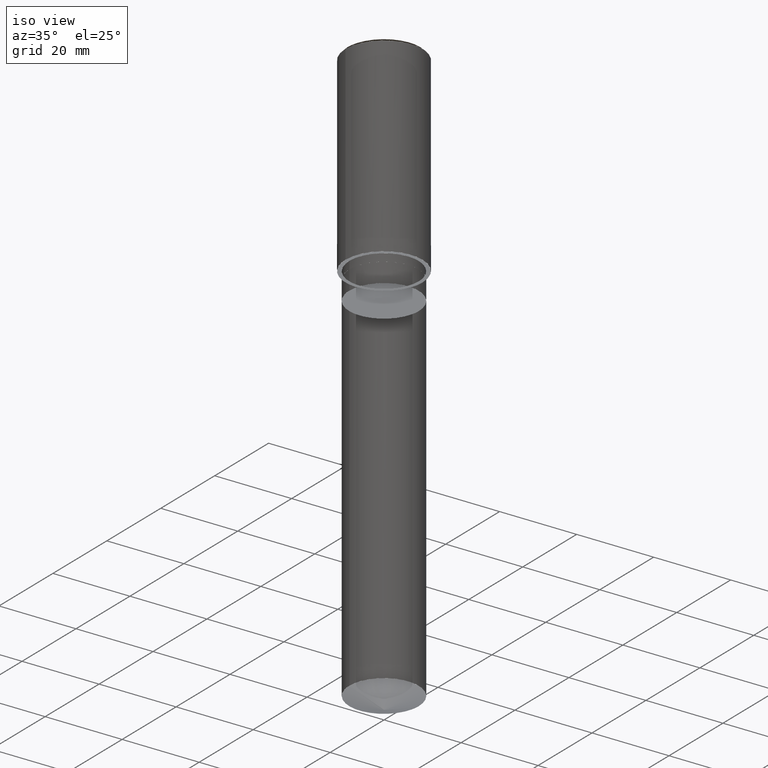
[diagram: clean part render]
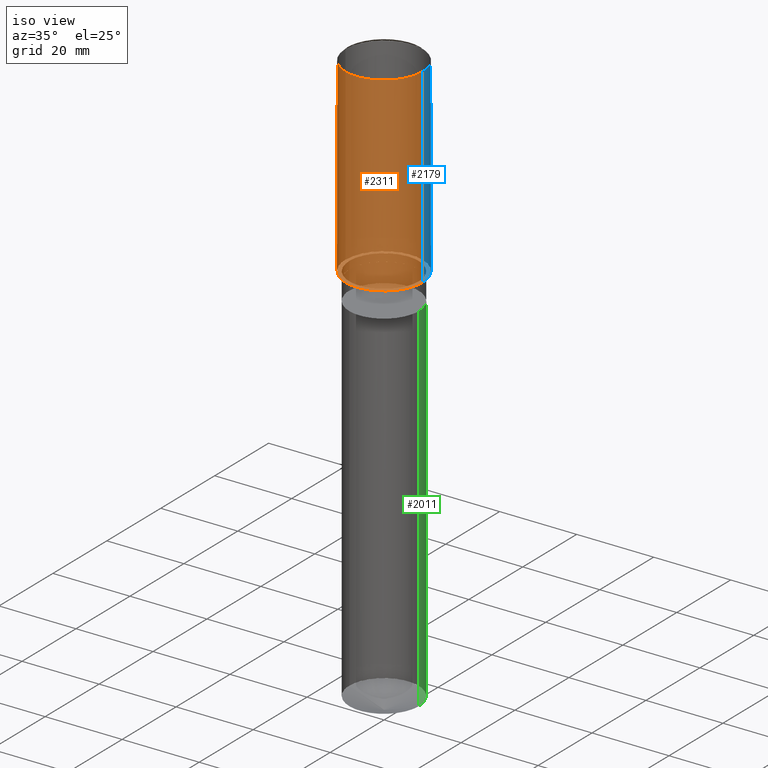
[diagram: same view with three faces highlighted in distinct colors, each labeled with its STEP entity id]
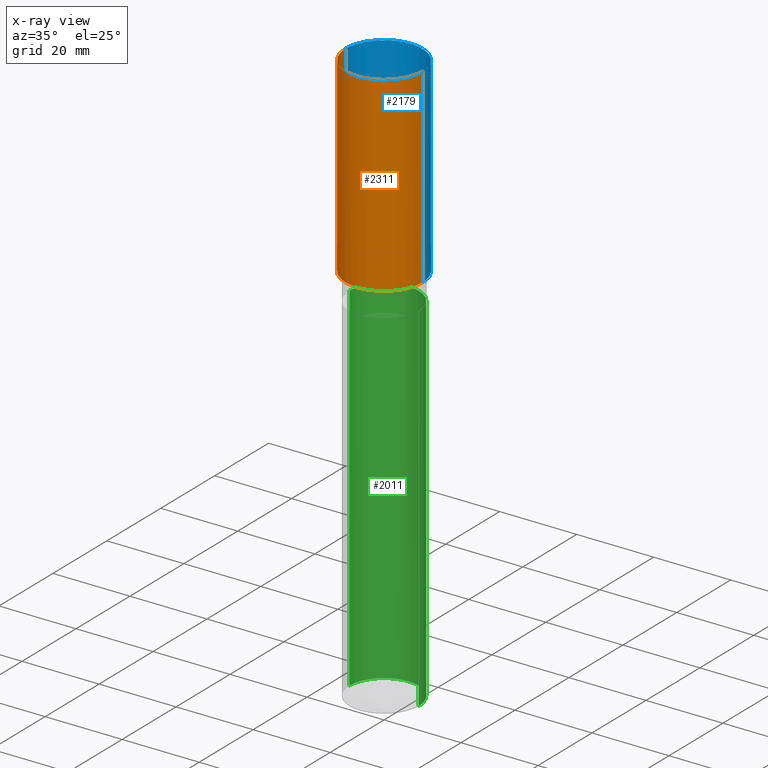
[diagram: x-ray of the same camera — body ghosted, the three highlighted faces saturated]
A machine part, iso view with three faces highlighted in distinct colors.
The next image is the same camera in x-ray (body ghosted, the three faces saturated) — at least one of them is partly hidden behind the body in this view.
Their STEP definitions:

[orange] entity #2311 — the highlighted face is a freeform B-spline surface patch.
#1940=CARTESIAN_POINT('',(10.0,0.0,0.0));
#1944=CARTESIAN_POINT('',(-10.0,0.0,0.0));
#1945=CARTESIAN_POINT('',(10.0,0.0,49.5));
#1949=CARTESIAN_POINT('',(-10.0,0.0,49.5));
#1962=CARTESIAN_POINT('',(-10.0,-10.0,0.0));
#1963=CARTESIAN_POINT('',(0.0,-10.0,0.0));
#1964=CARTESIAN_POINT('',(10.0,-10.0,0.0));
#1965=CARTESIAN_POINT('',(-10.0,-10.0,49.5));
#1966=CARTESIAN_POINT('',(0.0,-10.0,49.5));
#1967=CARTESIAN_POINT('',(10.0,-10.0,49.5));
#2292=(
BOUNDED_SURFACE()
B_SPLINE_SURFACE(1,2,(
(#1944,#1962,#1963,#1964,#1940),
(#1949,#1965,#1966,#1967,#1945)
), .UNSPECIFIED.,.F.,.F.,.F.)
B_SPLINE_SURFACE_WITH_KNOTS((2,2),(3,2,3),(
0.0,1.0),(
0.0,0.5,1.0), .UNSPECIFIED.)
GEOMETRIC_REPRESENTATION_ITEM()
RATIONAL_B_SPLINE_SURFACE(((1.0,0.707106781187,1.0,0.707106781187,1.0),
(1.0,0.707106781187,1.0,0.707106781187,1.0)
))
REPRESENTATION_ITEM('')
SURFACE()
);
#2293=(
BOUNDED_CURVE()
B_SPLINE_CURVE(2,(#1940,#1964,#1963,#1962,#1944),.UNSPECIFIED.,.F.,.F.)
B_SPLINE_CURVE_WITH_KNOTS((3,2,3),
(0.0,0.5,1.0),.UNSPECIFIED.)
CURVE()
GEOMETRIC_REPRESENTATION_ITEM()
RATIONAL_B_SPLINE_CURVE((1.0,0.707106781187,1.0,0.707106781187,1.0))
REPRESENTATION_ITEM('')
);
#2294=(
BOUNDED_CURVE()
B_SPLINE_CURVE(1,(#1944,#1949),.UNSPECIFIED.,.F.,.F.)
B_SPLINE_CURVE_WITH_KNOTS((2,2),
(0.0,1.0),.UNSPECIFIED.)
CURVE()
GEOMETRIC_REPRESENTATION_ITEM()
RATIONAL_B_SPLINE_CURVE((1.0,1.0))
REPRESENTATION_ITEM('')
);
#2295=(
BOUNDED_CURVE()
B_SPLINE_CURVE(2,(#1949,#1965,#1966,#1967,#1945),.UNSPECIFIED.,.F.,.F.)
B_SPLINE_CURVE_WITH_KNOTS((3,2,3),
(0.0,0.5,1.0),.UNSPECIFIED.)
CURVE()
GEOMETRIC_REPRESENTATION_ITEM()
RATIONAL_B_SPLINE_CURVE((1.0,0.707106781187,1.0,0.707106781187,1.0))
REPRESENTATION_ITEM('')
);
#2296=(
BOUNDED_CURVE()
B_SPLINE_CURVE(1,(#1945,#1940),.UNSPECIFIED.,.F.,.F.)
B_SPLINE_CURVE_WITH_KNOTS((2,2),
(0.0,1.0),.UNSPECIFIED.)
CURVE()
GEOMETRIC_REPRESENTATION_ITEM()
RATIONAL_B_SPLINE_CURVE((1.0,1.0))
REPRESENTATION_ITEM('')
);
#2297=VERTEX_POINT('',#1940);
#2298=VERTEX_POINT('',#1944);
#2299=VERTEX_POINT('',#1945);
#2300=VERTEX_POINT('',#1949);
#2301=EDGE_CURVE('',#2297,#2298,#2293,.T.);
#2302=EDGE_CURVE('',#2298,#2300,#2294,.T.);
#2303=EDGE_CURVE('',#2300,#2299,#2295,.T.);
#2304=EDGE_CURVE('',#2299,#2297,#2296,.T.);
#2305=ORIENTED_EDGE('',*,*,#2301,.T.);
#2306=ORIENTED_EDGE('',*,*,#2302,.T.);
#2307=ORIENTED_EDGE('',*,*,#2303,.T.);
#2308=ORIENTED_EDGE('',*,*,#2304,.T.);
#2309=EDGE_LOOP('',(#2305,#2306,#2307,#2308));
#2310=FACE_OUTER_BOUND('',#2309,.T.);
#2311=ADVANCED_FACE('',(#2310),#2292,.T.);

[blue] entity #2179 — the highlighted face is a freeform B-spline surface patch.
#1940=CARTESIAN_POINT('',(10.0,0.0,0.0));
#1941=CARTESIAN_POINT('',(10.0,10.0,0.0));
#1942=CARTESIAN_POINT('',(0.0,10.0,0.0));
#1943=CARTESIAN_POINT('',(-10.0,10.0,0.0));
#1944=CARTESIAN_POINT('',(-10.0,0.0,0.0));
#1945=CARTESIAN_POINT('',(10.0,0.0,49.5));
#1946=CARTESIAN_POINT('',(10.0,10.0,49.5));
#1947=CARTESIAN_POINT('',(0.0,10.0,49.5));
#1948=CARTESIAN_POINT('',(-10.0,10.0,49.5));
#1949=CARTESIAN_POINT('',(-10.0,0.0,49.5));
#2160=(
BOUNDED_SURFACE()
B_SPLINE_SURFACE(1,2,(
(#1940,#1941,#1942,#1943,#1944),
(#1945,#1946,#1947,#1948,#1949)
), .UNSPECIFIED.,.F.,.F.,.F.)
B_SPLINE_SURFACE_WITH_KNOTS((2,2),(3,2,3),(
0.0,1.0),(
0.0,0.5,1.0), .UNSPECIFIED.)
GEOMETRIC_REPRESENTATION_ITEM()
RATIONAL_B_SPLINE_SURFACE(((1.0,0.707106781187,1.0,0.707106781187,1.0),
(1.0,0.707106781187,1.0,0.707106781187,1.0)
))
REPRESENTATION_ITEM('')
SURFACE()
);
#2161=(
BOUNDED_CURVE()
B_SPLINE_CURVE(2,(#1944,#1943,#1942,#1941,#1940),.UNSPECIFIED.,.F.,.F.)
B_SPLINE_CURVE_WITH_KNOTS((3,2,3),
(0.0,0.5,1.0),.UNSPECIFIED.)
CURVE()
GEOMETRIC_REPRESENTATION_ITEM()
RATIONAL_B_SPLINE_CURVE((1.0,0.707106781187,1.0,0.707106781187,1.0))
REPRESENTATION_ITEM('')
);
#2162=(
BOUNDED_CURVE()
B_SPLINE_CURVE(1,(#1940,#1945),.UNSPECIFIED.,.F.,.F.)
B_SPLINE_CURVE_WITH_KNOTS((2,2),
(0.0,1.0),.UNSPECIFIED.)
CURVE()
GEOMETRIC_REPRESENTATION_ITEM()
RATIONAL_B_SPLINE_CURVE((1.0,1.0))
REPRESENTATION_ITEM('')
);
#2163=(
BOUNDED_CURVE()
B_SPLINE_CURVE(2,(#1945,#1946,#1947,#1948,#1949),.UNSPECIFIED.,.F.,.F.)
B_SPLINE_CURVE_WITH_KNOTS((3,2,3),
(0.0,0.5,1.0),.UNSPECIFIED.)
CURVE()
GEOMETRIC_REPRESENTATION_ITEM()
RATIONAL_B_SPLINE_CURVE((1.0,0.707106781187,1.0,0.707106781187,1.0))
REPRESENTATION_ITEM('')
);
#2164=(
BOUNDED_CURVE()
B_SPLINE_CURVE(1,(#1949,#1944),.UNSPECIFIED.,.F.,.F.)
B_SPLINE_CURVE_WITH_KNOTS((2,2),
(0.0,1.0),.UNSPECIFIED.)
CURVE()
GEOMETRIC_REPRESENTATION_ITEM()
RATIONAL_B_SPLINE_CURVE((1.0,1.0))
REPRESENTATION_ITEM('')
);
#2165=VERTEX_POINT('',#1940);
#2166=VERTEX_POINT('',#1944);
#2167=VERTEX_POINT('',#1945);
#2168=VERTEX_POINT('',#1949);
#2169=EDGE_CURVE('',#2166,#2165,#2161,.T.);
#2170=EDGE_CURVE('',#2165,#2167,#2162,.T.);
#2171=EDGE_CURVE('',#2167,#2168,#2163,.T.);
#2172=EDGE_CURVE('',#2168,#2166,#2164,.T.);
#2173=ORIENTED_EDGE('',*,*,#2169,.T.);
#2174=ORIENTED_EDGE('',*,*,#2170,.T.);
#2175=ORIENTED_EDGE('',*,*,#2171,.T.);
#2176=ORIENTED_EDGE('',*,*,#2172,.T.);
#2177=EDGE_LOOP('',(#2173,#2174,#2175,#2176));
#2178=FACE_OUTER_BOUND('',#2177,.T.);
#2179=ADVANCED_FACE('',(#2178),#2160,.T.);

[green] entity #2011 — the highlighted face is a freeform B-spline surface patch.
#1913=CARTESIAN_POINT('',(9.0,0.0,-99.724267891604));
#1914=CARTESIAN_POINT('',(9.0,9.0,-99.724267891604));
#1915=CARTESIAN_POINT('',(0.0,9.0,-99.724267891604));
#1916=CARTESIAN_POINT('',(-9.0,9.0,-99.724267891604));
#1917=CARTESIAN_POINT('',(-9.0,0.0,-99.724267891604));
#1918=CARTESIAN_POINT('',(9.0,0.0,-7.0));
#1919=CARTESIAN_POINT('',(9.0,9.0,-7.0));
#1920=CARTESIAN_POINT('',(0.0,9.0,-7.0));
#1921=CARTESIAN_POINT('',(-9.0,9.0,-7.0));
#1922=CARTESIAN_POINT('',(-9.0,0.0,-7.0));
#1992=(
BOUNDED_SURFACE()
B_SPLINE_SURFACE(1,2,(
(#1913,#1914,#1915,#1916,#1917),
(#1918,#1919,#1920,#1921,#1922)
), .UNSPECIFIED.,.F.,.F.,.F.)
B_SPLINE_SURFACE_WITH_KNOTS((2,2),(3,2,3),(
0.0,1.0),(
0.0,0.5,1.0), .UNSPECIFIED.)
GEOMETRIC_REPRESENTATION_ITEM()
RATIONAL_B_SPLINE_SURFACE(((1.0,0.707106781187,1.0,0.707106781187,1.0),
(1.0,0.707106781187,1.0,0.707106781187,1.0)
))
REPRESENTATION_ITEM('')
SURFACE()
);
#1993=(
BOUNDED_CURVE()
B_SPLINE_CURVE(2,(#1917,#1916,#1915,#1914,#1913),.UNSPECIFIED.,.F.,.F.)
B_SPLINE_CURVE_WITH_KNOTS((3,2,3),
(0.0,0.5,1.0),.UNSPECIFIED.)
CURVE()
GEOMETRIC_REPRESENTATION_ITEM()
RATIONAL_B_SPLINE_CURVE((1.0,0.707106781187,1.0,0.707106781187,1.0))
REPRESENTATION_ITEM('')
);
#1994=(
BOUNDED_CURVE()
B_SPLINE_CURVE(1,(#1913,#1918),.UNSPECIFIED.,.F.,.F.)
B_SPLINE_CURVE_WITH_KNOTS((2,2),
(0.0,1.0),.UNSPECIFIED.)
CURVE()
GEOMETRIC_REPRESENTATION_ITEM()
RATIONAL_B_SPLINE_CURVE((1.0,1.0))
REPRESENTATION_ITEM('')
);
#1995=(
BOUNDED_CURVE()
B_SPLINE_CURVE(2,(#1918,#1919,#1920,#1921,#1922),.UNSPECIFIED.,.F.,.F.)
B_SPLINE_CURVE_WITH_KNOTS((3,2,3),
(0.0,0.5,1.0),.UNSPECIFIED.)
CURVE()
GEOMETRIC_REPRESENTATION_ITEM()
RATIONAL_B_SPLINE_CURVE((1.0,0.707106781187,1.0,0.707106781187,1.0))
REPRESENTATION_ITEM('')
);
#1996=(
BOUNDED_CURVE()
B_SPLINE_CURVE(1,(#1922,#1917),.UNSPECIFIED.,.F.,.F.)
B_SPLINE_CURVE_WITH_KNOTS((2,2),
(0.0,1.0),.UNSPECIFIED.)
CURVE()
GEOMETRIC_REPRESENTATION_ITEM()
RATIONAL_B_SPLINE_CURVE((1.0,1.0))
REPRESENTATION_ITEM('')
);
#1997=VERTEX_POINT('',#1913);
#1998=VERTEX_POINT('',#1917);
#1999=VERTEX_POINT('',#1918);
#2000=VERTEX_POINT('',#1922);
#2001=EDGE_CURVE('',#1998,#1997,#1993,.T.);
#2002=EDGE_CURVE('',#1997,#1999,#1994,.T.);
#2003=EDGE_CURVE('',#1999,#2000,#1995,.T.);
#2004=EDGE_CURVE('',#2000,#1998,#1996,.T.);
#2005=ORIENTED_EDGE('',*,*,#2001,.T.);
#2006=ORIENTED_EDGE('',*,*,#2002,.T.);
#2007=ORIENTED_EDGE('',*,*,#2003,.T.);
#2008=ORIENTED_EDGE('',*,*,#2004,.T.);
#2009=EDGE_LOOP('',(#2005,#2006,#2007,#2008));
#2010=FACE_OUTER_BOUND('',#2009,.T.);
#2011=ADVANCED_FACE('',(#2010),#1992,.T.);